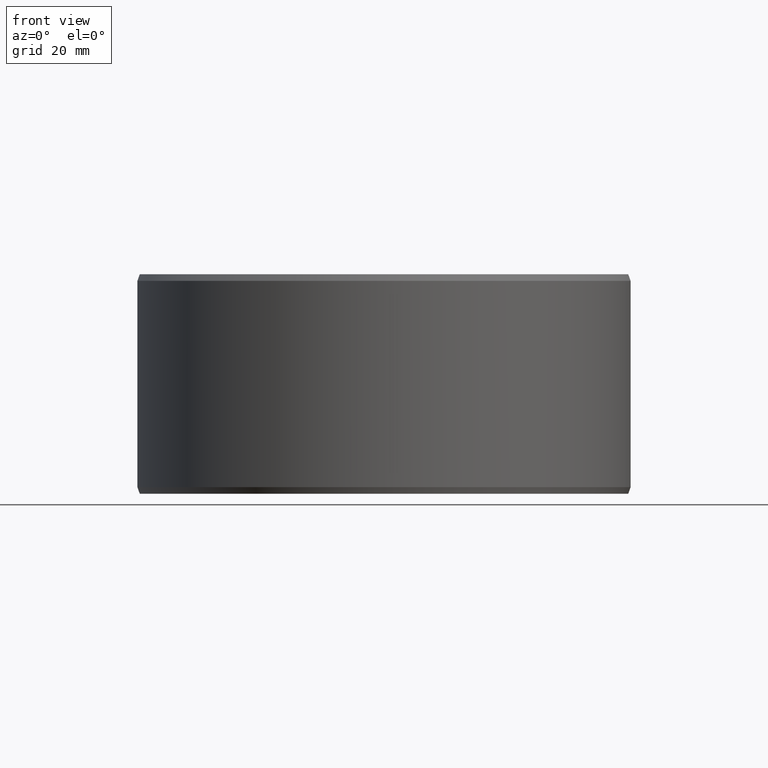
[diagram: clean part render]
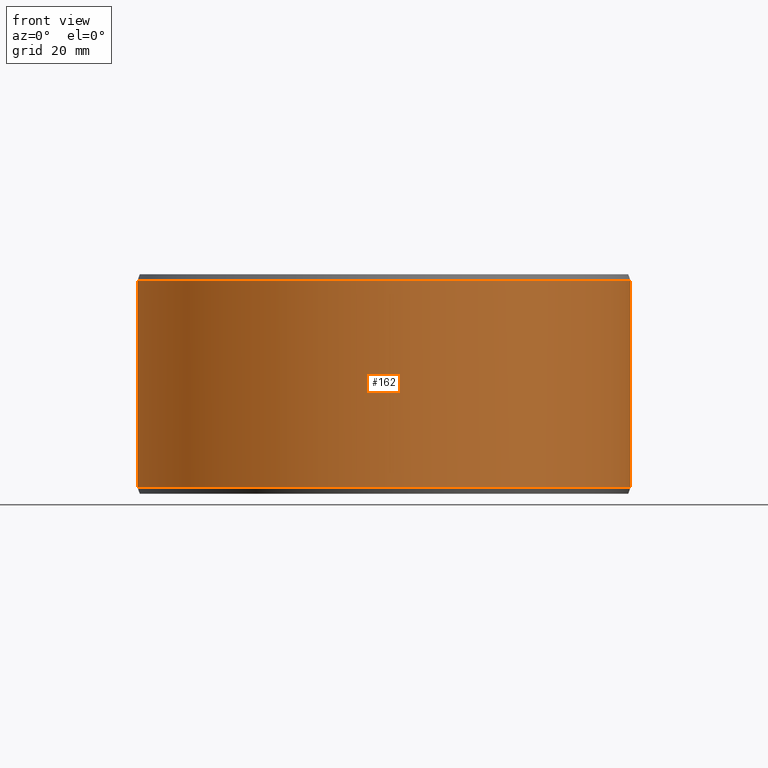
[diagram: same view with one face highlighted and labeled with its STEP entity id]
A machine part, front view. The second image highlights one B-rep face of the part: STEP entity #162.
In plain terms, the highlighted cylindrical surface (partial cylindrical patch) has radius 67.5 mm, axis along (-0, 0, -1).
Its self-contained STEP definition (entity closure, byte-faithful):
#162=ADVANCED_FACE('',(#185,#186),#187,.T.);
#185=FACE_OUTER_BOUND('',#211,.T.);
#186=FACE_BOUND('',#212,.T.);
#187=CYLINDRICAL_SURFACE('',#213,0.0675);
#211=EDGE_LOOP('',(#289,#290,#291,#292));
#212=EDGE_LOOP('',(#293));
#213=AXIS2_PLACEMENT_3D('',#294,#295,#296);
#289=ORIENTED_EDGE('',*,*,#314,.T.);
#290=ORIENTED_EDGE('',*,*,#323,.F.);
#291=ORIENTED_EDGE('',*,*,#309,.F.);
#292=ORIENTED_EDGE('',*,*,#324,.T.);
#293=ORIENTED_EDGE('',*,*,#327,.T.);
#294=CARTESIAN_POINT('',(-6.93889390390723E-018,-6.93889390390723E-018,0.0));
#295=DIRECTION('',(6.12323399573677E-017,0.0,-1.0));
#296=DIRECTION('',(-1.0,0.0,-6.12323399573677E-017));
#309=EDGE_CURVE('',#341,#342,#343,.T.);
#314=EDGE_CURVE('',#351,#349,#352,.T.);
#323=EDGE_CURVE('',#342,#349,#365,.T.);
#324=EDGE_CURVE('',#341,#351,#366,.T.);
#327=EDGE_CURVE('',#370,#370,#371,.T.);
#341=VERTEX_POINT('',#389);
#342=VERTEX_POINT('',#390);
#343=CIRCLE('',#391,0.0675);
#349=VERTEX_POINT('',#399);
#351=VERTEX_POINT('',#402);
#352=CIRCLE('',#403,0.0675);
#365=LINE('',#422,#423);
#366=LINE('',#424,#425);
#370=VERTEX_POINT('',#503);
#371=B_SPLINE_CURVE_WITH_KNOTS('',3,(#504,#505,#506,#507,#508,#509,#510,#511,#512,#513,#514,#515,#516,#517,#518,#519,#520,#521,#522,#523,#524,#525,#526,#527,#528,#529,#530,#531,#532,#533,#534,#535,#536,#537,#538,#539,#540,#541,#542,#543,#544,#545,#546,#547,#548,#549,#550,#551,#552,#553,#554,#555,#556,#557,#558,#559,#560,#561,#562,#563,#564,#565,#566,#567,#568,#569,#570,#571,#572,#573,#574,#575),.UNSPECIFIED.,.T.,.F.,(2,2,2,2,2,2,2,2,2,2,2,2,2,2,2,2,2,2,2,2,2,2,2,2,2,2,2,2,2,2,2,2,2,2,2,2,2,2),(-0.000977239299278939,0.0,0.000977239299278929,0.0014658589489184,0.00195447859855787,0.00293171789783679,0.00390895719711571,0.00488619649639463,0.00586343579567355,0.00684067509495247,0.00781791439423139,0.00879515369351031,0.00977239299278923,0.0107496322920681,0.0117268715913471,0.012704110890626,0.0131927305402655,0.0136813501899049,0.0146585894891838,0.0156358287884628,0.0166130680877417,0.0175903073870206,0.0185675466862996,0.0195447859855785,0.0205220252848574,0.0214992645841364,0.0224765038834153,0.0234537431826942,0.0244309824819731,0.0249196021316126,0.0254082217812521,0.026385461080531,0.02736270037981,0.0283399396790889,0.0293171789783678,0.0302944182776468,0.0312716575769257,0.0322488968762047),.UNSPECIFIED.);
#389=CARTESIAN_POINT('',(0.00117803743451663,0.0674897194230564,0.0018));
#390=CARTESIAN_POINT('',(-6.93889390390723E-018,0.0675,0.0018));
#391=AXIS2_PLACEMENT_3D('',#589,#590,#591);
#399=CARTESIAN_POINT('',(-1.04083408558608E-017,0.0675,0.0582));
#402=CARTESIAN_POINT('',(0.00117803743451663,0.0674897194230564,0.0582));
#403=AXIS2_PLACEMENT_3D('',#598,#599,#600);
#422=CARTESIAN_POINT('',(-6.93889390390723E-018,0.0675,0.0018));
#423=VECTOR('',#613,1.0);
#424=CARTESIAN_POINT('',(0.00117803743451663,0.0674897194230564,0.0018));
#425=VECTOR('',#614,1.0);
#503=CARTESIAN_POINT('',(0.0551246493951795,-0.0389553979450672,0.03));
#504=CARTESIAN_POINT('',(0.0551246493951795,-0.0389553979450672,0.0296695546587731));
#505=CARTESIAN_POINT('',(0.0551246493951795,-0.0389553979450672,0.0303304453412269));
#506=CARTESIAN_POINT('',(0.0551434393443032,-0.0389288473414133,0.0306553460252825));
#507=CARTESIAN_POINT('',(0.0551984740144593,-0.0388507333391216,0.0311347254260006));
#508=CARTESIAN_POINT('',(0.0552213239489283,-0.0388182645091561,0.0312931801059165));
#509=CARTESIAN_POINT('',(0.0552761666210437,-0.0387401301218505,0.0316073528265825));
#510=CARTESIAN_POINT('',(0.0553083086491289,-0.038694249580905,0.0317634734225602));
#511=CARTESIAN_POINT('',(0.0554163343086886,-0.0385395344654599,0.0322175641031194));
#512=CARTESIAN_POINT('',(0.0555041776389466,-0.0384131397107111,0.0325047054699773));
#513=CARTESIAN_POINT('',(0.0557102479488591,-0.0381136630525981,0.0330481325215065));
#514=CARTESIAN_POINT('',(0.0558295061005694,-0.0379390242315718,0.0333053423813362));
#515=CARTESIAN_POINT('',(0.0560877466415641,-0.0375561977275259,0.0337664039557517));
#516=CARTESIAN_POINT('',(0.0562276579530656,-0.0373466902986731,0.0339733362985402));
#517=CARTESIAN_POINT('',(0.0565284391080719,-0.036889840974948,0.0343388585285903));
#518=CARTESIAN_POINT('',(0.0566870709028618,-0.0366458257237834,0.0344941215060829));
#519=CARTESIAN_POINT('',(0.0570115466874084,-0.0361389553644462,0.0347435206168236));
#520=CARTESIAN_POINT('',(0.0571797873178336,-0.0358723584150521,0.0348395539607356));
#521=CARTESIAN_POINT('',(0.0575202246492081,-0.0353239002981731,0.0349680345293251));
#522=CARTESIAN_POINT('',(0.0576893862029768,-0.035046984561022,0.0349998232914185));
#523=CARTESIAN_POINT('',(0.0580254207428873,-0.0344877797909292,0.0350001752533573));
#524=CARTESIAN_POINT('',(0.0581939962251395,-0.0342025095053623,0.0349677027927312));
#525=CARTESIAN_POINT('',(0.058516368751715,-0.0336479931233538,0.0348401209113646));
#526=CARTESIAN_POINT('',(0.0586711020926707,-0.033377290270285,0.0347457230876724));
#527=CARTESIAN_POINT('',(0.0589682530937431,-0.0328494574327752,0.034495344300681));
#528=CARTESIAN_POINT('',(0.0591101067938795,-0.0325932319782646,0.0343388417174521));
#529=CARTESIAN_POINT('',(0.0593700051268868,-0.0321173782741718,0.0339770252475803));
#530=CARTESIAN_POINT('',(0.0594897624884599,-0.0318947146904115,0.0337704616249824));
#531=CARTESIAN_POINT('',(0.0597092874444632,-0.0314818306168905,0.0333039255006539));
#532=CARTESIAN_POINT('',(0.0598055959583304,-0.0312981407472563,0.0330512398553684));
#533=CARTESIAN_POINT('',(0.0599311441912632,-0.0310566609033802,0.0326452651573095));
#534=CARTESIAN_POINT('',(0.0599698417196024,-0.0309818351215289,0.032505359758074));
#535=CARTESIAN_POINT('',(0.0600409278690456,-0.0308438487221654,0.032216179500742));
#536=CARTESIAN_POINT('',(0.0600733896675929,-0.0307805427722611,0.0320663151619938));
#537=CARTESIAN_POINT('',(0.0601593153924909,-0.03061245840413,0.0316120538922929));
#538=CARTESIAN_POINT('',(0.0602022106724301,-0.0305278226038893,0.0313003963754822));
#539=CARTESIAN_POINT('',(0.0602601804187616,-0.0304132336110531,0.0306596116652656));
#540=CARTESIAN_POINT('',(0.0602749767889007,-0.0303838307840117,0.0303281569013639));
#541=CARTESIAN_POINT('',(0.0602750832051408,-0.0303836196761895,0.0296754552100381));
#542=CARTESIAN_POINT('',(0.0602608728443688,-0.0304118612458369,0.0293510313060474));
#543=CARTESIAN_POINT('',(0.0602030635575675,-0.030526140251999,0.0287061206800817));
#544=CARTESIAN_POINT('',(0.060159589851681,-0.0306119145101661,0.0283901770992497));
#545=CARTESIAN_POINT('',(0.0600460339196205,-0.0308340618735836,0.0277882945446544));
#546=CARTESIAN_POINT('',(0.0599751693485966,-0.0309719640348829,0.0274977973467514));
#547=CARTESIAN_POINT('',(0.0598063379539992,-0.0312967320195408,0.0269504694144773));
#548=CARTESIAN_POINT('',(0.0597101435158172,-0.0314801831055633,0.026698595045666));
#549=CARTESIAN_POINT('',(0.0594936801077365,-0.031887382995122,0.0262371781966666));
#550=CARTESIAN_POINT('',(0.0593718792146927,-0.0321139205492133,0.0260258958404252));
#551=CARTESIAN_POINT('',(0.0591112287230698,-0.0325912039264304,0.0256624116538591));
#552=CARTESIAN_POINT('',(0.0589721589988049,-0.0328424415967562,0.0255086268829692));
#553=CARTESIAN_POINT('',(0.0586754293621593,-0.0333696792939775,0.0252572615864784));
#554=CARTESIAN_POINT('',(0.0585176804835797,-0.0336457014605785,0.0251606583978952));
#555=CARTESIAN_POINT('',(0.0581964329064322,-0.0341983530732085,0.025033004384742));
#556=CARTESIAN_POINT('',(0.0580312885478873,-0.0344779418214109,0.025000327463994));
#557=CARTESIAN_POINT('',(0.0576913691614843,-0.0350437561777001,0.0249996773857883));
#558=CARTESIAN_POINT('',(0.0575214577615943,-0.0353218637365079,0.0250318684743111));
#559=CARTESIAN_POINT('',(0.0572686445928895,-0.0357292301442829,0.0251267319688533));
#560=CARTESIAN_POINT('',(0.0571846187555157,-0.0358635474545355,0.0251661734120749));
#561=CARTESIAN_POINT('',(0.0570171375328378,-0.0361292220480715,0.0252610173227034));
#562=CARTESIAN_POINT('',(0.0569333370302716,-0.0362611102995739,0.0253167525400498));
#563=CARTESIAN_POINT('',(0.0566881413577066,-0.0366441887841729,0.0255047433065251));
#564=CARTESIAN_POINT('',(0.0565314504470592,-0.0368852148139639,0.025658125860347));
#565=CARTESIAN_POINT('',(0.0562323976091843,-0.03733954231968,0.026020276452669));
#566=CARTESIAN_POINT('',(0.056089261972773,-0.0375539361547254,0.026231200452654));
#567=CARTESIAN_POINT('',(0.0558307491025768,-0.0379371965755072,0.0266921317836579));
#568=CARTESIAN_POINT('',(0.0557137850951561,-0.0381084991731653,0.0269435490949464));
#569=CARTESIAN_POINT('',(0.0555061177458902,-0.0384103430294466,0.0274891951846074));
#570=CARTESIAN_POINT('',(0.0554169811778534,-0.038538602560883,0.0277804500804581));
#571=CARTESIAN_POINT('',(0.0552735668819755,-0.0387440123677974,0.0283818415494518));
#572=CARTESIAN_POINT('',(0.0552181499432346,-0.0388228041658972,0.0286958949986499));
#573=CARTESIAN_POINT('',(0.0551434424662289,-0.0389288448252815,0.0293426548515311));
#574=CARTESIAN_POINT('',(0.0551246493951795,-0.0389553979450672,0.0296695546587731));
#575=CARTESIAN_POINT('',(0.0551246493951795,-0.0389553979450672,0.0303304453412269));
#589=CARTESIAN_POINT('',(-6.93889390390723E-018,-6.93889390390723E-018,0.0018));
#590=DIRECTION('',(6.12323399573677E-017,0.0,-1.0));
#591=DIRECTION('',(-1.0,0.0,-6.12323399573677E-017));
#598=CARTESIAN_POINT('',(-1.04083408558608E-017,-6.93889390390723E-018,0.0582));
#599=DIRECTION('',(6.12323399573677E-017,0.0,-1.0));
#600=DIRECTION('',(-1.0,0.0,-6.12323399573677E-017));
#613=DIRECTION('',(-6.15150168786102E-017,0.0,1.0));
#614=DIRECTION('',(-6.15149738255459E-017,4.93339251996452E-021,1.0));